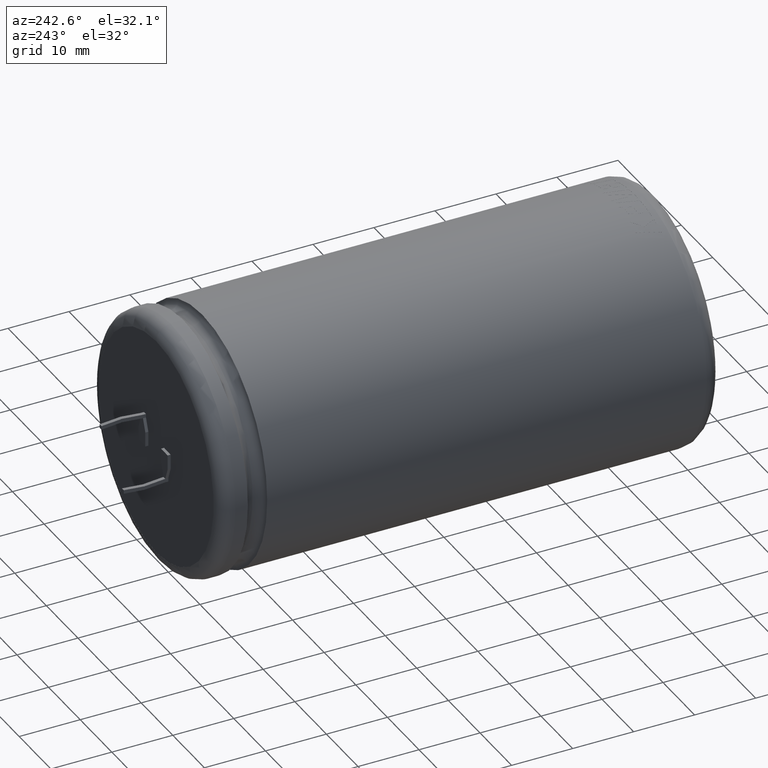
[diagram: clean part render]
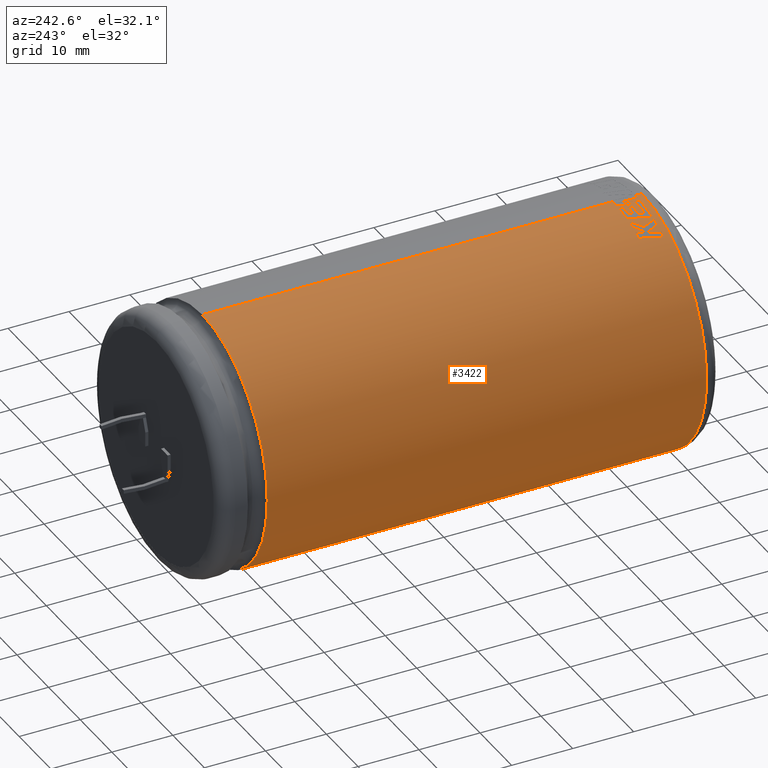
[diagram: same view with one face highlighted and labeled with its STEP entity id]
A machine part, auxiliary view. The second image highlights one B-rep face of the part: STEP entity #3422.
In plain terms, the highlighted cylindrical surface (partial cylindrical patch) has radius 20.5 mm, axis along (-0, -1, -0).
Its self-contained STEP definition (entity closure, byte-faithful):
#24 = DIRECTION ( 'NONE',  ( -0.1924161733876253400, 0.0000000000000000000, 0.9813134138586219200 ) ) ;
#41 = CYLINDRICAL_SURFACE ( 'NONE', #3677, 20.50000000000000000 ) ;
#42 = CARTESIAN_POINT ( 'NONE',  ( 0.0000000000000000000, 4.142112498812841700, 0.0000000000000000000 ) ) ;
#53 = EDGE_CURVE ( 'NONE', #1326, #628, #4284, .T. ) ;
#74 = ORIENTED_EDGE ( 'NONE', *, *, #1782, .F. ) ;
#81 = CARTESIAN_POINT ( 'NONE',  ( -7.413952731383198500, 4.781541633584531300, 19.11430033413537500 ) ) ;
#82 = VERTEX_POINT ( 'NONE', #1665 ) ;
#119 = VERTEX_POINT ( 'NONE', #1397 ) ;
#135 = B_SPLINE_CURVE_WITH_KNOTS ( 'NONE', 3,
 ( #645, #602, #1358, #1035 ),
 .UNSPECIFIED., .F., .F.,
 ( 4, 4 ),
 ( 0.0000000000000000000, 1.000000000000000000 ),
 .UNSPECIFIED. ) ;
#143 = CARTESIAN_POINT ( 'NONE',  ( 0.0000000000000000000, 82.00000000000000000, 0.0000000000000000000 ) ) ;
#163 = VERTEX_POINT ( 'NONE', #696 ) ;
#175 = EDGE_CURVE ( 'NONE', #1489, #1182, #4729, .T. ) ;
#178 = LINE ( 'NONE', #3046, #810 ) ;
#179 = VERTEX_POINT ( 'NONE', #4429 ) ;
#182 = DIRECTION ( 'NONE',  ( 0.0000000000000000000, 0.0000000000000000000, 1.000000000000000000 ) ) ;
#202 = DIRECTION ( 'NONE',  ( -0.0000000000000000000, -1.000000000000000000, -0.0000000000000000000 ) ) ;
#208 = CARTESIAN_POINT ( 'NONE',  ( -4.390130178884057900, 7.157156118638999600, 20.02440403638648500 ) ) ;
#240 = AXIS2_PLACEMENT_3D ( 'NONE', #4065, #1448, #1853 ) ;
#252 = ORIENTED_EDGE ( 'NONE', *, *, #300, .F. ) ;
#253 = CARTESIAN_POINT ( 'NONE',  ( 2.510525938252074500E-015, 82.00000000000000000, 20.50000000000000000 ) ) ;
#300 = EDGE_CURVE ( 'NONE', #163, #4765, #1526, .T. ) ;
#302 = CIRCLE ( 'NONE', #3095, 20.50000000000000000 ) ;
#314 = DIRECTION ( 'NONE',  ( -0.0000000000000000000, -1.000000000000000000, -0.0000000000000000000 ) ) ;
#319 = CARTESIAN_POINT ( 'NONE',  ( -8.188806447311950600, 7.157156118638999600, 18.79344164777868200 ) ) ;
#320 = B_SPLINE_CURVE_WITH_KNOTS ( 'NONE', 3,
 ( #1464, #2996, #4489, #383 ),
 .UNSPECIFIED., .F., .F.,
 ( 4, 4 ),
 ( 0.0000000000000000000, 1.000000000000000000 ),
 .UNSPECIFIED. ) ;
#343 = CARTESIAN_POINT ( 'NONE',  ( 0.0000000000000000000, 3.433728050141721300, 0.0000000000000000000 ) ) ;
#359 = CARTESIAN_POINT ( 'NONE',  ( 0.0000000000000000000, 3.433728050141721300, 0.0000000000000000000 ) ) ;
#380 = CARTESIAN_POINT ( 'NONE',  ( -8.022109115764195100, 4.107634846392789600, 18.86618865664239300 ) ) ;
#383 = CARTESIAN_POINT ( 'NONE',  ( -0.7184394462411530800, 3.433728050141721300, 20.48740697994953000 ) ) ;
#403 = DIRECTION ( 'NONE',  ( -0.4467404299827819600, 0.0000000000000000000, 0.8946636173550365200 ) ) ;
#407 = VERTEX_POINT ( 'NONE', #2770 ) ;
#429 = AXIS2_PLACEMENT_3D ( 'NONE', #862, #3078, #1578 ) ;
#439 = VERTEX_POINT ( 'NONE', #530 ) ;
#441 = CARTESIAN_POINT ( 'NONE',  ( -8.188806447311950600, 7.157156118638999600, 18.79344164777868200 ) ) ;
#442 = ORIENTED_EDGE ( 'NONE', *, *, #1837, .T. ) ;
#443 = VERTEX_POINT ( 'NONE', #4626 ) ;
#468 = CARTESIAN_POINT ( 'NONE',  ( -4.030781500619114300, 4.759057198956265100, 20.10001307363250000 ) ) ;
#471 = ORIENTED_EDGE ( 'NONE', *, *, #4221, .F. ) ;
#476 = EDGE_CURVE ( 'NONE', #2559, #2316, #3865, .T. ) ;
#479 = DIRECTION ( 'NONE',  ( -0.0000000000000000000, -1.000000000000000000, -0.0000000000000000000 ) ) ;
#496 = DIRECTION ( 'NONE',  ( -0.0000000000000000000, -1.000000000000000000, -0.0000000000000000000 ) ) ;
#513 = EDGE_LOOP ( 'NONE', ( #4710, #3062, #442, #3113, #1140, #4574, #1032, #4147, #3862, #4460, #4440 ) ) ;
#530 = CARTESIAN_POINT ( 'NONE',  ( -4.202947973977453300, 4.142112498812841700, 20.06452661609635200 ) ) ;
#532 = EDGE_CURVE ( 'NONE', #565, #1326, #3395, .T. ) ;
#563 = AXIS2_PLACEMENT_3D ( 'NONE', #1802, #1814, #2207 ) ;
#564 = EDGE_CURVE ( 'NONE', #1489, #4346, #1632, .T. ) ;
#565 = VERTEX_POINT ( 'NONE', #3692 ) ;
#567 = CARTESIAN_POINT ( 'NONE',  ( -7.206360564211605500, 7.157156118638999600, 19.19162232377908900 ) ) ;
#590 = CARTESIAN_POINT ( 'NONE',  ( -7.348392856298557900, 6.627884890618636500, 19.13828989094604800 ) ) ;
#602 = CARTESIAN_POINT ( 'NONE',  ( -1.589685321276979700, 6.152141571172516700, 20.44031192177013900 ) ) ;
#604 = CIRCLE ( 'NONE', #3253, 20.50000000000000400 ) ;
#622 = B_SPLINE_CURVE_WITH_KNOTS ( 'NONE', 3,
 ( #2702, #1597, #468, #2359 ),
 .UNSPECIFIED., .F., .F.,
 ( 4, 4 ),
 ( 0.0000000000000000000, 1.000000000000000000 ),
 .UNSPECIFIED. ) ;
#628 = VERTEX_POINT ( 'NONE', #567 ) ;
#645 = CARTESIAN_POINT ( 'NONE',  ( -1.301389342183613100, 7.157156118638999600, 20.45865063439060100 ) ) ;
#653 = EDGE_CURVE ( 'NONE', #1089, #3419, #3994, .T. ) ;
#666 = CARTESIAN_POINT ( 'NONE',  ( -6.079724299748547400, 6.022684787393974800, 19.58628756228198100 ) ) ;
#673 = CARTESIAN_POINT ( 'NONE',  ( -2.170688592043160900, 5.755863672348010800, 20.38475192481806200 ) ) ;
#680 = ORIENTED_EDGE ( 'NONE', *, *, #1285, .T. ) ;
#696 = CARTESIAN_POINT ( 'NONE',  ( 2.510525938252074500E-015, 7.157156118638999600, 20.50000000000000000 ) ) ;
#704 = CARTESIAN_POINT ( 'NONE',  ( -2.366089126580968000, 5.067529549057161900, 20.36299639652954600 ) ) ;
#711 = CARTESIAN_POINT ( 'NONE',  ( -2.143408953517993400, 3.433728050141721300, 20.38763836391991200 ) ) ;
#810 = VECTOR ( 'NONE', #2471, 1000.000000000000000 ) ;
#815 = DIRECTION ( 'NONE',  ( 0.0000000000000000000, 0.0000000000000000000, -1.000000000000000000 ) ) ;
#856 = CARTESIAN_POINT ( 'NONE',  ( -3.751640985550925800, 5.755863672348010800, 20.15378847550838200 ) ) ;
#862 = CARTESIAN_POINT ( 'NONE',  ( 0.0000000000000000000, 7.157156118638999600, 0.0000000000000000000 ) ) ;
#872 = AXIS2_PLACEMENT_3D ( 'NONE', #2420, #202, #3086 ) ;
#888 = CARTESIAN_POINT ( 'NONE',  ( -1.872337394742296100, 6.448420704369920200, 20.41431734543797200 ) ) ;
#899 = CARTESIAN_POINT ( 'NONE',  ( -6.363672725046952500, 4.781541632163175800, 19.48927139247413700 ) ) ;
#904 = VERTEX_POINT ( 'NONE', #4300 ) ;
#931 = B_SPLINE_CURVE_WITH_KNOTS ( 'NONE', 3,
 ( #888, #3487, #3460, #1574 ),
 .UNSPECIFIED., .F., .F.,
 ( 4, 4 ),
 ( 0.0000000000000000000, 1.000000000000000000 ),
 .UNSPECIFIED. ) ;
#969 = ORIENTED_EDGE ( 'NONE', *, *, #2195, .T. ) ;
#1032 = ORIENTED_EDGE ( 'NONE', *, *, #532, .F. ) ;
#1035 = CARTESIAN_POINT ( 'NONE',  ( -2.164856950770949000, 4.142112498812841700, 20.38537206878252700 ) ) ;
#1052 = DIRECTION ( 'NONE',  ( -0.1045565343179508900, 0.0000000000000000000, 0.9945189445814590600 ) ) ;
#1060 = CIRCLE ( 'NONE', #1349, 20.50000000000000400 ) ;
#1063 = EDGE_CURVE ( 'NONE', #3923, #443, #302, .T. ) ;
#1076 = B_SPLINE_CURVE_WITH_KNOTS ( 'NONE', 3,
 ( #319, #4360, #1355, #1723 ),
 .UNSPECIFIED., .F., .F.,
 ( 4, 4 ),
 ( 0.0000000000000000000, 1.000000000000000000 ),
 .UNSPECIFIED. ) ;
#1085 = ORIENTED_EDGE ( 'NONE', *, *, #4155, .F. ) ;
#1089 = VERTEX_POINT ( 'NONE', #3658 ) ;
#1094 = CARTESIAN_POINT ( 'NONE',  ( -7.664837330433890400, 5.455448435884774100, 19.01316040793815900 ) ) ;
#1098 = CARTESIAN_POINT ( 'NONE',  ( -2.235856379306596400, 5.526418964579892000, 20.37781247454154300 ) ) ;
#1103 = CARTESIAN_POINT ( 'NONE',  ( 2.510525938252074500E-015, 82.00000000000000000, 20.50000000000000000 ) ) ;
#1109 = VERTEX_POINT ( 'NONE', #4085 ) ;
#1140 = ORIENTED_EDGE ( 'NONE', *, *, #4445, .F. ) ;
#1182 = VERTEX_POINT ( 'NONE', #4025 ) ;
#1213 = EDGE_LOOP ( 'NONE', ( #2488, #4616, #680, #3813, #1496, #3074, #1892, #1085, #969, #4463, #1508, #3969, #2421, #2853, #3520, #1800, #3308, #1556, #471, #74, #3251, #252 ) ) ;
#1237 = DIRECTION ( 'NONE',  ( -0.06348240693578620400, 0.0000000000000000000, 0.9979829577751512200 ) ) ;
#1239 = LINE ( 'NONE', #1103, #2414 ) ;
#1250 = B_SPLINE_CURVE_WITH_KNOTS ( 'NONE', 3,
 ( #208, #1640, #4610, #1674 ),
 .UNSPECIFIED., .F., .F.,
 ( 4, 4 ),
 ( 0.0000000000000000000, 1.000000000000000000 ),
 .UNSPECIFIED. ) ;
#1285 = EDGE_CURVE ( 'NONE', #2571, #4584, #178, .T. ) ;
#1290 = AXIS2_PLACEMENT_3D ( 'NONE', #343, #314, #4798 ) ;
#1326 = VERTEX_POINT ( 'NONE', #3567 ) ;
#1336 = EDGE_CURVE ( 'NONE', #1442, #163, #4001, .T. ) ;
#1349 = AXIS2_PLACEMENT_3D ( 'NONE', #2700, #479, #4524 ) ;
#1355 = CARTESIAN_POINT ( 'NONE',  ( -8.839067552607316400, 4.674870761226579000, 18.49994885209822500 ) ) ;
#1356 = DIRECTION ( 'NONE',  ( -0.3994539730396073400, 0.0000000000000000000, 0.9167532511111552400 ) ) ;
#1358 = CARTESIAN_POINT ( 'NONE',  ( -1.877593586985216500, 5.147127046279301500, 20.41587845776062000 ) ) ;
#1368 = AXIS2_PLACEMENT_3D ( 'NONE', #3565, #4804, #3972 ) ;
#1397 = CARTESIAN_POINT ( 'NONE',  ( -2.164856950770949000, 4.142112498812841700, 20.38537206878252700 ) ) ;
#1442 = VERTEX_POINT ( 'NONE', #2247 ) ;
#1448 = DIRECTION ( 'NONE',  ( -0.0000000000000000000, -1.000000000000000000, -0.0000000000000000000 ) ) ;
#1452 = CARTESIAN_POINT ( 'NONE',  ( -7.664837330433890400, 5.455448435884774100, 19.01316040793815900 ) ) ;
#1459 = CARTESIAN_POINT ( 'NONE',  ( -7.141074568441962500, 6.098613949517506700, 19.22324853051825500 ) ) ;
#1464 = CARTESIAN_POINT ( 'NONE',  ( -0.5327186346195858000, 6.748598189941196400, 20.49307714464396900 ) ) ;
#1489 = VERTEX_POINT ( 'NONE', #4439 ) ;
#1496 = ORIENTED_EDGE ( 'NONE', *, *, #2848, .F. ) ;
#1508 = ORIENTED_EDGE ( 'NONE', *, *, #3055, .F. ) ;
#1526 = CIRCLE ( 'NONE', #4776, 20.50000000000000000 ) ;
#1537 = CARTESIAN_POINT ( 'NONE',  ( -7.664837330433890400, 5.455448435884774100, 19.01316040793815900 ) ) ;
#1556 = ORIENTED_EDGE ( 'NONE', *, *, #175, .T. ) ;
#1574 = CARTESIAN_POINT ( 'NONE',  ( -1.671795939915271800, 7.157156118638999600, 20.43171794870130500 ) ) ;
#1578 = DIRECTION ( 'NONE',  ( -0.2141526916528810300, 0.0000000000000000000, 0.9768001968969017800 ) ) ;
#1593 = CIRCLE ( 'NONE', #4023, 20.50000000000000000 ) ;
#1597 = CARTESIAN_POINT ( 'NONE',  ( -4.116922682239843000, 4.450584848913739400, 20.08254646936960700 ) ) ;
#1630 = FACE_BOUND ( 'NONE', #513, .T. ) ;
#1632 = B_SPLINE_CURVE_WITH_KNOTS ( 'NONE', 3,
 ( #704, #4790, #1098, #4437 ),
 .UNSPECIFIED., .F., .F.,
 ( 4, 4 ),
 ( 0.0000000000000000000, 1.000000000000000000 ),
 .UNSPECIFIED. ) ;
#1640 = CARTESIAN_POINT ( 'NONE',  ( -4.738995257485628400, 5.916013407388066800, 19.94791920781708000 ) ) ;
#1665 = CARTESIAN_POINT ( 'NONE',  ( -3.751640985550925800, 5.755863672348010800, 20.15378847550838200 ) ) ;
#1674 = CARTESIAN_POINT ( 'NONE',  ( -5.430253990827026200, 3.433728050141721300, 19.76770956876661600 ) ) ;
#1706 = CARTESIAN_POINT ( 'NONE',  ( 0.0000000000000000000, 3.433728050141721300, 0.0000000000000000000 ) ) ;
#1723 = CARTESIAN_POINT ( 'NONE',  ( -9.158178814647030200, 3.433728050141721300, 18.34060415577824800 ) ) ;
#1751 = CARTESIAN_POINT ( 'NONE',  ( -7.630646358741664400, 5.569342435477922800, 19.02690821304981500 ) ) ;
#1782 = EDGE_CURVE ( 'NONE', #119, #439, #2320, .T. ) ;
#1800 = ORIENTED_EDGE ( 'NONE', *, *, #1968, .F. ) ;
#1802 = CARTESIAN_POINT ( 'NONE',  ( 0.0000000000000000000, 2.361600000000005500, 0.0000000000000000000 ) ) ;
#1808 = CARTESIAN_POINT ( 'NONE',  ( -5.523495648231900600, 6.589919767129812200, 19.75035958805100100 ) ) ;
#1814 = DIRECTION ( 'NONE',  ( 0.0000000000000000000, 1.000000000000000000, 0.0000000000000000000 ) ) ;
#1837 = EDGE_CURVE ( 'NONE', #1089, #179, #1904, .T. ) ;
#1844 = EDGE_CURVE ( 'NONE', #3913, #443, #320, .T. ) ;
#1853 = DIRECTION ( 'NONE',  ( -0.2648904385769281200, 0.0000000000000000000, 0.9642785155495909900 ) ) ;
#1854 = VERTEX_POINT ( 'NONE', #711 ) ;
#1892 = ORIENTED_EDGE ( 'NONE', *, *, #1844, .F. ) ;
#1904 = CIRCLE ( 'NONE', #2223, 20.50000000000000000 ) ;
#1909 = CARTESIAN_POINT ( 'NONE',  ( -6.906375305670363400, 3.433728050141721300, 19.30160563624764000 ) ) ;
#1927 = AXIS2_PLACEMENT_3D ( 'NONE', #1706, #4773, #1052 ) ;
#1937 = EDGE_CURVE ( 'NONE', #4692, #565, #3249, .T. ) ;
#1947 = DIRECTION ( 'NONE',  ( -0.0000000000000000000, -1.000000000000000000, -0.0000000000000000000 ) ) ;
#1959 = AXIS2_PLACEMENT_3D ( 'NONE', #42, #4070, #3682 ) ;
#1968 = EDGE_CURVE ( 'NONE', #4346, #82, #2565, .T. ) ;
#1977 = CARTESIAN_POINT ( 'NONE',  ( -4.390130178884057900, 7.157156118638999600, 20.02440403638648500 ) ) ;
#1981 = CARTESIAN_POINT ( 'NONE',  ( 0.0000000000000000000, 2.361600000000005500, 20.49999999999999600 ) ) ;
#2061 = EDGE_CURVE ( 'NONE', #2204, #4568, #931, .T. ) ;
#2065 = EDGE_CURVE ( 'NONE', #82, #1109, #3049, .T. ) ;
#2080 = VERTEX_POINT ( 'NONE', #1977 ) ;
#2139 = CIRCLE ( 'NONE', #1927, 20.50000000000000000 ) ;
#2173 = CARTESIAN_POINT ( 'NONE',  ( -5.829685752689217200, 3.433728050141721300, 19.65361961636818900 ) ) ;
#2184 = CARTESIAN_POINT ( 'NONE',  ( -1.872337394742296100, 6.448420704369920200, 20.41431734543797200 ) ) ;
#2195 = EDGE_CURVE ( 'NONE', #2376, #1854, #2139, .T. ) ;
#2204 = VERTEX_POINT ( 'NONE', #2184 ) ;
#2207 = DIRECTION ( 'NONE',  ( 0.0000000000000000000, 0.0000000000000000000, 1.000000000000000000 ) ) ;
#2223 = AXIS2_PLACEMENT_3D ( 'NONE', #2242, #3009, #403 ) ;
#2224 = EDGE_CURVE ( 'NONE', #3023, #179, #1076, .T. ) ;
#2230 = DIRECTION ( 'NONE',  ( -0.0000000000000000000, -1.000000000000000000, -0.0000000000000000000 ) ) ;
#2239 = CARTESIAN_POINT ( 'NONE',  ( 0.0000000000000000000, 5.067529549057161900, 0.0000000000000000000 ) ) ;
#2241 = CARTESIAN_POINT ( 'NONE',  ( -0.8498768567997913000, 5.643641464663491400, 20.48483259972347500 ) ) ;
#2242 = CARTESIAN_POINT ( 'NONE',  ( 0.0000000000000000000, 3.433728050141721300, 0.0000000000000000000 ) ) ;
#2247 = CARTESIAN_POINT ( 'NONE',  ( 0.0000000000000000000, 74.42314000000003200, 20.50000000000000400 ) ) ;
#2297 = FACE_OUTER_BOUND ( 'NONE', #1213, .T. ) ;
#2316 = VERTEX_POINT ( 'NONE', #4806 ) ;
#2320 = CIRCLE ( 'NONE', #1959, 20.50000000000000400 ) ;
#2332 = CARTESIAN_POINT ( 'NONE',  ( 0.0000000000000000000, 7.157156118638999600, 0.0000000000000000000 ) ) ;
#2357 = CIRCLE ( 'NONE', #1290, 20.50000000000000000 ) ;
#2359 = CARTESIAN_POINT ( 'NONE',  ( -3.944531554446320900, 5.067529549057161900, 20.11692498410175700 ) ) ;
#2376 = VERTEX_POINT ( 'NONE', #3050 ) ;
#2414 = VECTOR ( 'NONE', #3325, 1000.000000000000000 ) ;
#2420 = CARTESIAN_POINT ( 'NONE',  ( 0.0000000000000000000, 7.157156118638999600, 0.0000000000000000000 ) ) ;
#2421 = ORIENTED_EDGE ( 'NONE', *, *, #2061, .F. ) ;
#2471 = DIRECTION ( 'NONE',  ( -0.0000000000000000000, -1.000000000000000000, -0.0000000000000000000 ) ) ;
#2478 = CARTESIAN_POINT ( 'NONE',  ( -7.206360564211605500, 7.157156118638999600, 19.19162232377908900 ) ) ;
#2488 = ORIENTED_EDGE ( 'NONE', *, *, #1336, .F. ) ;
#2497 = CARTESIAN_POINT ( 'NONE',  ( -7.489833073692849100, 6.098613663498285900, 19.08338067661503600 ) ) ;
#2517 = CARTESIAN_POINT ( 'NONE',  ( -0.5327186346195858000, 6.748598189941196400, 20.49307714464396900 ) ) ;
#2522 = AXIS2_PLACEMENT_3D ( 'NONE', #2239, #3665, #24 ) ;
#2541 = CARTESIAN_POINT ( 'NONE',  ( -6.628008047586592800, 5.455448435884802500, 19.39895639773251900 ) ) ;
#2559 = VERTEX_POINT ( 'NONE', #3146 ) ;
#2565 = CIRCLE ( 'NONE', #1368, 20.50000000000000000 ) ;
#2571 = VERTEX_POINT ( 'NONE', #4602 ) ;
#2619 = EDGE_CURVE ( 'NONE', #2571, #1442, #604, .T. ) ;
#2683 = VECTOR ( 'NONE', #3553, 1000.000000000000000 ) ;
#2700 = CARTESIAN_POINT ( 'NONE',  ( 0.0000000000000000000, 6.448420704369920200, 0.0000000000000000000 ) ) ;
#2702 = CARTESIAN_POINT ( 'NONE',  ( -4.202947973977453300, 4.142112498812841700, 20.06452661609635200 ) ) ;
#2770 = CARTESIAN_POINT ( 'NONE',  ( -6.906375305670363400, 3.433728050141721300, 19.30160563624764000 ) ) ;
#2777 = CARTESIAN_POINT ( 'NONE',  ( -1.671795939915271800, 7.157156118638999600, 20.43171794870130500 ) ) ;
#2848 = EDGE_CURVE ( 'NONE', #3923, #3426, #1239, .T. ) ;
#2853 = ORIENTED_EDGE ( 'NONE', *, *, #3412, .T. ) ;
#2874 = EDGE_CURVE ( 'NONE', #4584, #3426, #4380, .T. ) ;
#2981 = CARTESIAN_POINT ( 'NONE',  ( -7.630646358741664400, 5.569342435477922800, 19.02690821304981500 ) ) ;
#2996 = CARTESIAN_POINT ( 'NONE',  ( -0.5946337135522047300, 5.643641476673986200, 20.49146765886111200 ) ) ;
#2999 = EDGE_CURVE ( 'NONE', #1854, #904, #3294, .T. ) ;
#3009 = DIRECTION ( 'NONE',  ( -0.0000000000000000000, -1.000000000000000000, -0.0000000000000000000 ) ) ;
#3023 = VERTEX_POINT ( 'NONE', #441 ) ;
#3046 = CARTESIAN_POINT ( 'NONE',  ( 0.0000000000000000000, 82.00000000000000000, -20.50000000000000000 ) ) ;
#3049 = B_SPLINE_CURVE_WITH_KNOTS ( 'NONE', 3,
 ( #856, #3819, #4180, #3103 ),
 .UNSPECIFIED., .F., .F.,
 ( 4, 4 ),
 ( 0.0000000000000000000, 1.000000000000000000 ),
 .UNSPECIFIED. ) ;
#3050 = CARTESIAN_POINT ( 'NONE',  ( -1.483277408373457700, 3.433728050141721300, 20.44626831795496400 ) ) ;
#3055 = EDGE_CURVE ( 'NONE', #2080, #904, #1250, .T. ) ;
#3062 = ORIENTED_EDGE ( 'NONE', *, *, #653, .F. ) ;
#3074 = ORIENTED_EDGE ( 'NONE', *, *, #1063, .T. ) ;
#3078 = DIRECTION ( 'NONE',  ( -0.0000000000000000000, -1.000000000000000000, -0.0000000000000000000 ) ) ;
#3086 = DIRECTION ( 'NONE',  ( -0.2995447569332599900, 0.0000000000000000000, 0.9540822493861806900 ) ) ;
#3095 = AXIS2_PLACEMENT_3D ( 'NONE', #359, #2230, #4400 ) ;
#3103 = CARTESIAN_POINT ( 'NONE',  ( -3.553344101003239200, 6.448420704369920200, 20.18969404671268500 ) ) ;
#3113 = ORIENTED_EDGE ( 'NONE', *, *, #2224, .F. ) ;
#3146 = CARTESIAN_POINT ( 'NONE',  ( -5.829685752689217200, 3.433728050141721300, 19.65361961636818900 ) ) ;
#3185 = CARTESIAN_POINT ( 'NONE',  ( 0.0000000000000000000, 7.157156118638999600, 0.0000000000000000000 ) ) ;
#3249 = CIRCLE ( 'NONE', #872, 20.50000000000000000 ) ;
#3251 = ORIENTED_EDGE ( 'NONE', *, *, #4794, .F. ) ;
#3253 = AXIS2_PLACEMENT_3D ( 'NONE', #4242, #4555, #182 ) ;
#3292 = EDGE_CURVE ( 'NONE', #2316, #4692, #3779, .T. ) ;
#3294 = CIRCLE ( 'NONE', #240, 20.50000000000000000 ) ;
#3308 = ORIENTED_EDGE ( 'NONE', *, *, #564, .F. ) ;
#3325 = DIRECTION ( 'NONE',  ( -0.0000000000000000000, -1.000000000000000000, -0.0000000000000000000 ) ) ;
#3330 = CARTESIAN_POINT ( 'NONE',  ( -7.843983612021971500, 4.781541639633706700, 18.94094058349742600 ) ) ;
#3363 = CARTESIAN_POINT ( 'NONE',  ( -0.5327186346195858000, 6.748598189941196400, 20.49307714464396900 ) ) ;
#3395 = B_SPLINE_CURVE_WITH_KNOTS ( 'NONE', 3,
 ( #4775, #4457, #1459, #2981 ),
 .UNSPECIFIED., .F., .F.,
 ( 4, 4 ),
 ( 0.0000000000000000000, 1.000000000000000000 ),
 .UNSPECIFIED. ) ;
#3412 = EDGE_CURVE ( 'NONE', #2204, #1109, #1060, .T. ) ;
#3419 = VERTEX_POINT ( 'NONE', #1537 ) ;
#3422 = ADVANCED_FACE ( 'NONE', ( #2297, #1630 ), #41, .T. ) ;
#3426 = VERTEX_POINT ( 'NONE', #1981 ) ;
#3459 = B_SPLINE_CURVE_WITH_KNOTS ( 'NONE', 3,
 ( #1094, #81, #3740, #1909 ),
 .UNSPECIFIED., .F., .F.,
 ( 4, 4 ),
 ( 0.0000000000000000000, 1.000000000000000000 ),
 .UNSPECIFIED. ) ;
#3460 = CARTESIAN_POINT ( 'NONE',  ( -1.738671031387283500, 6.920910980544279700, 20.42624599050938300 ) ) ;
#3487 = CARTESIAN_POINT ( 'NONE',  ( -1.805519257215021200, 6.684665842464650800, 20.42044569621367200 ) ) ;
#3520 = ORIENTED_EDGE ( 'NONE', *, *, #2065, .F. ) ;
#3553 = DIRECTION ( 'NONE',  ( -0.0000000000000000000, -1.000000000000000000, -0.0000000000000000000 ) ) ;
#3560 = CARTESIAN_POINT ( 'NONE',  ( 2.510525938252074100E-015, 2.361600000000005500, -20.49999999999999600 ) ) ;
#3565 = CARTESIAN_POINT ( 'NONE',  ( 0.0000000000000000000, 5.755863672348010800, 0.0000000000000000000 ) ) ;
#3567 = CARTESIAN_POINT ( 'NONE',  ( -7.630646358741664400, 5.569342435477922800, 19.02690821304981500 ) ) ;
#3627 = CARTESIAN_POINT ( 'NONE',  ( -4.961316746563746900, 7.157156118638999600, 19.89058410756874200 ) ) ;
#3658 = CARTESIAN_POINT ( 'NONE',  ( -8.199142690197742700, 3.433728050141721300, 18.78893448670724800 ) ) ;
#3661 = CARTESIAN_POINT ( 'NONE',  ( -6.628008047586592800, 5.455448435884802500, 19.39895639773251900 ) ) ;
#3665 = DIRECTION ( 'NONE',  ( -0.0000000000000000000, -1.000000000000000000, -0.0000000000000000000 ) ) ;
#3677 = AXIS2_PLACEMENT_3D ( 'NONE', #143, #1947, #815 ) ;
#3682 = DIRECTION ( 'NONE',  ( -0.2050218523891442500, 0.0000000000000000000, 0.9787573959071389500 ) ) ;
#3692 = CARTESIAN_POINT ( 'NONE',  ( -6.140667517131830300, 7.157156118638999600, 19.55868611241670500 ) ) ;
#3740 = CARTESIAN_POINT ( 'NONE',  ( -7.161066029736561600, 4.107634852441963200, 19.21047385372014200 ) ) ;
#3779 = B_SPLINE_CURVE_WITH_KNOTS ( 'NONE', 3,
 ( #2541, #666, #1808, #4119 ),
 .UNSPECIFIED., .F., .F.,
 ( 4, 4 ),
 ( 0.0000000000000000000, 1.000000000000000000 ),
 .UNSPECIFIED. ) ;
#3813 = ORIENTED_EDGE ( 'NONE', *, *, #2874, .T. ) ;
#3819 = CARTESIAN_POINT ( 'NONE',  ( -3.685601383720091800, 5.986716016360497300, 20.16608179084207800 ) ) ;
#3862 = ORIENTED_EDGE ( 'NONE', *, *, #3292, .F. ) ;
#3865 = B_SPLINE_CURVE_WITH_KNOTS ( 'NONE', 3,
 ( #2173, #4757, #899, #3661 ),
 .UNSPECIFIED., .F., .F.,
 ( 4, 4 ),
 ( 0.0000000000000000000, 1.000000000000000000 ),
 .UNSPECIFIED. ) ;
#3913 = VERTEX_POINT ( 'NONE', #2517 ) ;
#3923 = VERTEX_POINT ( 'NONE', #3929 ) ;
#3929 = CARTESIAN_POINT ( 'NONE',  ( 2.510525938252074500E-015, 3.433728050141721300, 20.50000000000000000 ) ) ;
#3932 = CARTESIAN_POINT ( 'NONE',  ( -8.199142690197742700, 3.433728050141721300, 18.78893448670724800 ) ) ;
#3969 = ORIENTED_EDGE ( 'NONE', *, *, #4183, .F. ) ;
#3972 = DIRECTION ( 'NONE',  ( -0.1830068773439478000, 0.0000000000000000000, 0.9831116329516284000 ) ) ;
#3994 = B_SPLINE_CURVE_WITH_KNOTS ( 'NONE', 3,
 ( #3932, #380, #3330, #1452 ),
 .UNSPECIFIED., .F., .F.,
 ( 4, 4 ),
 ( 0.0000000000000000000, 1.000000000000000000 ),
 .UNSPECIFIED. ) ;
#4001 = LINE ( 'NONE', #253, #2683 ) ;
#4023 = AXIS2_PLACEMENT_3D ( 'NONE', #3185, #4648, #1356 ) ;
#4025 = CARTESIAN_POINT ( 'NONE',  ( -3.944531554446320900, 5.067529549057161900, 20.11692498410175700 ) ) ;
#4059 = CIRCLE ( 'NONE', #429, 20.50000000000000000 ) ;
#4065 = CARTESIAN_POINT ( 'NONE',  ( 0.0000000000000000000, 3.433728050141721300, 0.0000000000000000000 ) ) ;
#4068 = EDGE_CURVE ( 'NONE', #3419, #407, #3459, .T. ) ;
#4070 = DIRECTION ( 'NONE',  ( -0.0000000000000000000, -1.000000000000000000, -0.0000000000000000000 ) ) ;
#4085 = CARTESIAN_POINT ( 'NONE',  ( -3.553344101003239200, 6.448420704369920200, 20.18969404671268500 ) ) ;
#4119 = CARTESIAN_POINT ( 'NONE',  ( -4.961316746563746900, 7.157156118638999600, 19.89058410756874200 ) ) ;
#4147 = ORIENTED_EDGE ( 'NONE', *, *, #1937, .F. ) ;
#4155 = EDGE_CURVE ( 'NONE', #2376, #3913, #4208, .T. ) ;
#4180 = CARTESIAN_POINT ( 'NONE',  ( -3.619501357617870100, 6.217568360357428300, 20.17805050734124400 ) ) ;
#4183 = EDGE_CURVE ( 'NONE', #4568, #2080, #4059, .T. ) ;
#4208 = B_SPLINE_CURVE_WITH_KNOTS ( 'NONE', 3,
 ( #4373, #4382, #2241, #3363 ),
 .UNSPECIFIED., .F., .F.,
 ( 4, 4 ),
 ( 0.0000000000000000000, 1.000000000000000000 ),
 .UNSPECIFIED. ) ;
#4221 = EDGE_CURVE ( 'NONE', #439, #1182, #622, .T. ) ;
#4242 = CARTESIAN_POINT ( 'NONE',  ( 0.0000000000000000000, 74.42314000000003200, 0.0000000000000000000 ) ) ;
#4284 = B_SPLINE_CURVE_WITH_KNOTS ( 'NONE', 3,
 ( #1751, #2497, #590, #2478 ),
 .UNSPECIFIED., .F., .F.,
 ( 4, 4 ),
 ( 0.0000000000000000000, 1.000000000000000000 ),
 .UNSPECIFIED. ) ;
#4300 = CARTESIAN_POINT ( 'NONE',  ( -5.430253990827026200, 3.433728050141721300, 19.76770956876661600 ) ) ;
#4346 = VERTEX_POINT ( 'NONE', #673 ) ;
#4360 = CARTESIAN_POINT ( 'NONE',  ( -8.515796705176647700, 5.916013407554156200, 18.65096322461412400 ) ) ;
#4373 = CARTESIAN_POINT ( 'NONE',  ( -1.483277408373457700, 3.433728050141721300, 20.44626831795496400 ) ) ;
#4380 = CIRCLE ( 'NONE', #563, 20.50000000000000000 ) ;
#4382 = CARTESIAN_POINT ( 'NONE',  ( -1.166843616406940200, 4.538684775419427300, 20.46922405186058200 ) ) ;
#4400 = DIRECTION ( 'NONE',  ( -0.03504582664590990400, 0.0000000000000000000, 0.9993857063390014800 ) ) ;
#4429 = CARTESIAN_POINT ( 'NONE',  ( -9.158178814647030200, 3.433728050141721300, 18.34060415577824800 ) ) ;
#4437 = CARTESIAN_POINT ( 'NONE',  ( -2.170688592043160900, 5.755863672348010800, 20.38475192481806200 ) ) ;
#4439 = CARTESIAN_POINT ( 'NONE',  ( -2.366089126580968000, 5.067529549057161900, 20.36299639652954600 ) ) ;
#4440 = ORIENTED_EDGE ( 'NONE', *, *, #4504, .T. ) ;
#4445 = EDGE_CURVE ( 'NONE', #628, #3023, #1593, .T. ) ;
#4457 = CARTESIAN_POINT ( 'NONE',  ( -6.643922216673483500, 6.627884604599416600, 19.40068368993508900 ) ) ;
#4460 = ORIENTED_EDGE ( 'NONE', *, *, #476, .F. ) ;
#4463 = ORIENTED_EDGE ( 'NONE', *, *, #2999, .T. ) ;
#4489 = CARTESIAN_POINT ( 'NONE',  ( -0.6565414983958790500, 4.538684763408931600, 20.48957757808412700 ) ) ;
#4504 = EDGE_CURVE ( 'NONE', #2559, #407, #2357, .T. ) ;
#4524 = DIRECTION ( 'NONE',  ( -0.1733338585855238300, 0.0000000000000000000, 0.9848631242298868700 ) ) ;
#4542 = CARTESIAN_POINT ( 'NONE',  ( -1.301389342183613100, 7.157156118638999600, 20.45865063439060100 ) ) ;
#4555 = DIRECTION ( 'NONE',  ( -0.0000000000000000000, 1.000000000000000000, -0.0000000000000000000 ) ) ;
#4568 = VERTEX_POINT ( 'NONE', #2777 ) ;
#4574 = ORIENTED_EDGE ( 'NONE', *, *, #53, .F. ) ;
#4584 = VERTEX_POINT ( 'NONE', #3560 ) ;
#4602 = CARTESIAN_POINT ( 'NONE',  ( 2.510525938252074500E-015, 74.42314000000003200, -20.50000000000000400 ) ) ;
#4610 = CARTESIAN_POINT ( 'NONE',  ( -5.085861042105574500, 4.674870761392639000, 19.86231542978969600 ) ) ;
#4616 = ORIENTED_EDGE ( 'NONE', *, *, #2619, .F. ) ;
#4626 = CARTESIAN_POINT ( 'NONE',  ( -0.7184394462411530800, 3.433728050141721300, 20.48740697994953000 ) ) ;
#4648 = DIRECTION ( 'NONE',  ( -0.0000000000000000000, -1.000000000000000000, -0.0000000000000000000 ) ) ;
#4692 = VERTEX_POINT ( 'NONE', #3627 ) ;
#4710 = ORIENTED_EDGE ( 'NONE', *, *, #4068, .F. ) ;
#4729 = CIRCLE ( 'NONE', #2522, 20.50000000000000700 ) ;
#4757 = CARTESIAN_POINT ( 'NONE',  ( -6.097491183757219000, 4.107634853863347100, 19.57418277285211200 ) ) ;
#4765 = VERTEX_POINT ( 'NONE', #4542 ) ;
#4773 = DIRECTION ( 'NONE',  ( -0.0000000000000000000, -1.000000000000000000, -0.0000000000000000000 ) ) ;
#4775 = CARTESIAN_POINT ( 'NONE',  ( -6.140667517131830300, 7.157156118638999600, 19.55868611241670500 ) ) ;
#4776 = AXIS2_PLACEMENT_3D ( 'NONE', #2332, #496, #1237 ) ;
#4790 = CARTESIAN_POINT ( 'NONE',  ( -2.300990889324548800, 5.296974256825269100, 20.37056052060699300 ) ) ;
#4794 = EDGE_CURVE ( 'NONE', #4765, #119, #135, .T. ) ;
#4798 = DIRECTION ( 'NONE',  ( -0.3368963563741642600, 0.0000000000000000000, 0.9415417383535432700 ) ) ;
#4804 = DIRECTION ( 'NONE',  ( -0.0000000000000000000, -1.000000000000000000, -0.0000000000000000000 ) ) ;
#4806 = CARTESIAN_POINT ( 'NONE',  ( -6.628008047586592800, 5.455448435884802500, 19.39895639773251900 ) ) ;